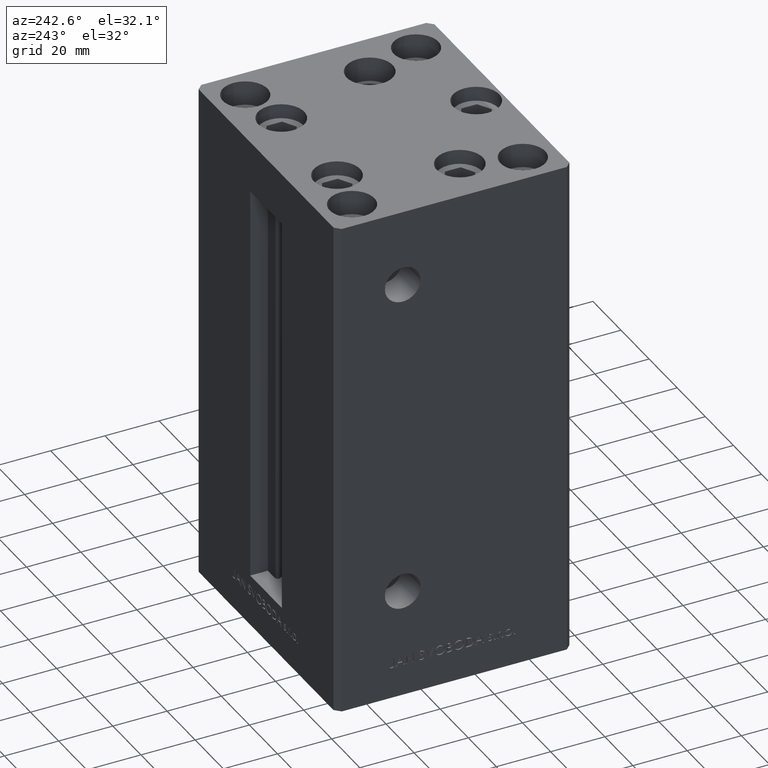
[diagram: clean part render]
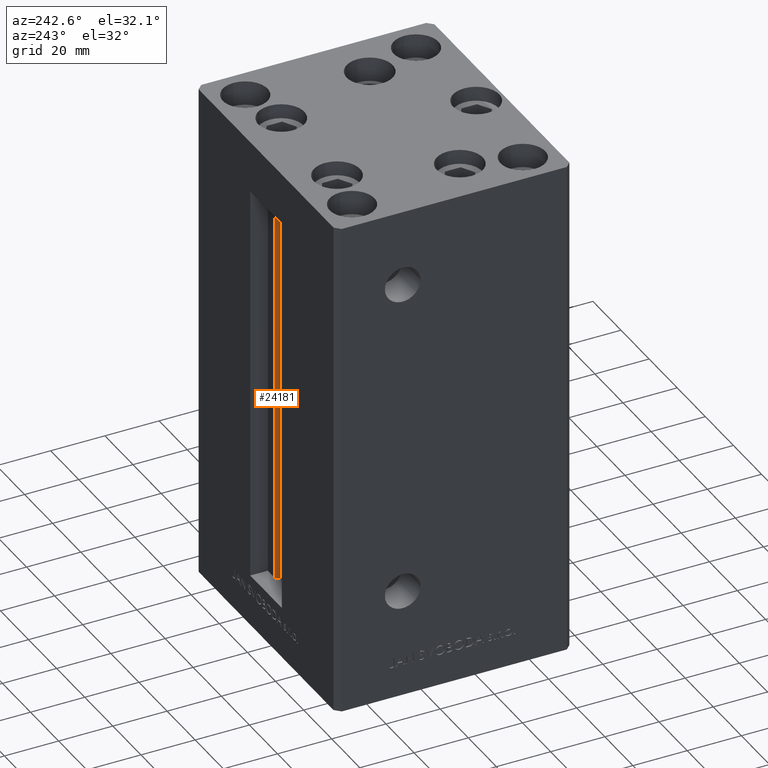
[diagram: same view with one face highlighted and labeled with its STEP entity id]
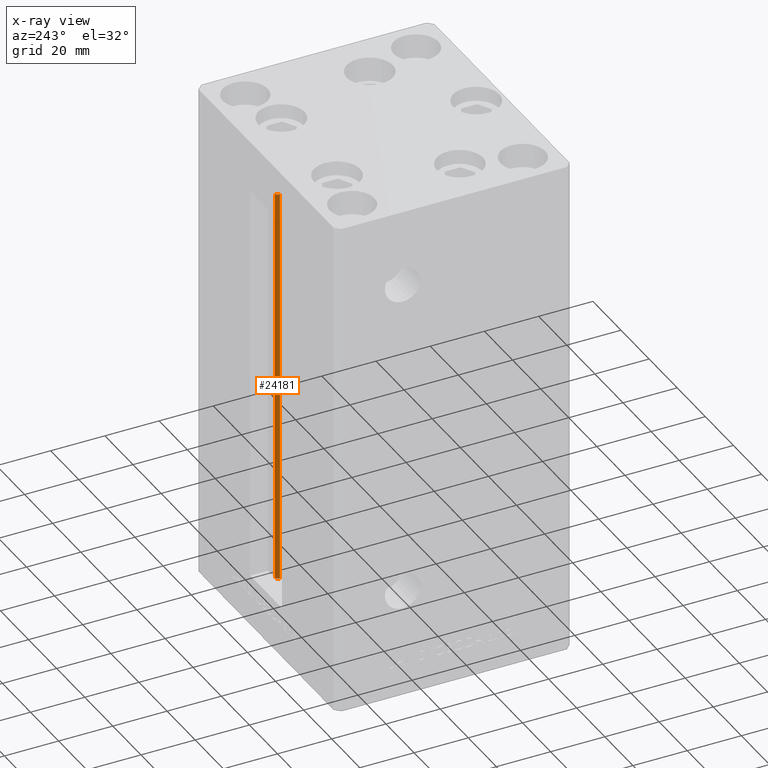
[diagram: x-ray of the same camera — body ghosted, the highlighted face saturated]
A machine part, auxiliary view. The second image highlights one B-rep face of the part: STEP entity #24181.
The next image is the same camera in x-ray: the body ghosted, the highlighted face saturated — about 0% of this face is hidden behind the body in this view.
In plain terms, the highlighted cylindrical surface (edge-blend (fillet) strip) has radius 0.9333 mm, axis along (0, 0, 1).
Its self-contained STEP definition (entity closure, byte-faithful):
#2963 = EDGE_LOOP ( 'NONE', ( #13505, #5982, #11460, #9560 ) ) ;
#3210 = VERTEX_POINT ( 'NONE', #34575 ) ;
#3589 = AXIS2_PLACEMENT_3D ( 'NONE', #19942, #38980, #4444 ) ;
#4444 = DIRECTION ( 'NONE',  ( 1.000000000000000000, 0.000000000000000000, 0.000000000000000000 ) ) ;
#5253 = DIRECTION ( 'NONE',  ( 0.000000000000000000, 0.000000000000000000, -1.000000000000000000 ) ) ;
#5393 = VERTEX_POINT ( 'NONE', #39719 ) ;
#5982 = ORIENTED_EDGE ( 'NONE', *, *, #36786, .F. ) ;
#7255 = LINE ( 'NONE', #45336, #39250 ) ;
#8321 = CARTESIAN_POINT ( 'NONE',  ( 6.183333333333997928, 36.06666666666598786, 148.5000000000000000 ) ) ;
#9560 = ORIENTED_EDGE ( 'NONE', *, *, #31005, .T. ) ;
#10240 = CARTESIAN_POINT ( 'NONE',  ( 5.375042956467945388, 35.59999999999898534, 0.000000000000000000 ) ) ;
#11460 = ORIENTED_EDGE ( 'NONE', *, *, #20365, .T. ) ;
#11804 = LINE ( 'NONE', #39207, #31268 ) ;
#12855 = CARTESIAN_POINT ( 'NONE',  ( 5.375042956467942723, 35.59999999999898534, 148.5000000000000000 ) ) ;
#13505 = ORIENTED_EDGE ( 'NONE', *, *, #23628, .F. ) ;
#15219 = CARTESIAN_POINT ( 'NONE',  ( 6.183333333333997928, 36.06666666666598786, 0.000000000000000000 ) ) ;
#15718 = DIRECTION ( 'NONE',  ( -0.000000000000000000, -0.000000000000000000, 1.000000000000000000 ) ) ;
#19144 = AXIS2_PLACEMENT_3D ( 'NONE', #15219, #15718, #50252 ) ;
#19174 = DIRECTION ( 'NONE',  ( -0.000000000000000000, -0.000000000000000000, 1.000000000000000000 ) ) ;
#19942 = CARTESIAN_POINT ( 'NONE',  ( 6.183333333333997928, 36.06666666666598786, 0.000000000000000000 ) ) ;
#20365 = EDGE_CURVE ( 'NONE', #45264, #43682, #7255, .T. ) ;
#23302 = CIRCLE ( 'NONE', #46816, 0.9333333333340008142 ) ;
#23589 = CYLINDRICAL_SURFACE ( 'NONE', #19144, 0.9333333333340008142 ) ;
#23628 = EDGE_CURVE ( 'NONE', #5393, #3210, #11804, .T. ) ;
#24181 = ADVANCED_FACE ( 'NONE', ( #34760 ), #23589, .T. ) ;
#25449 = CIRCLE ( 'NONE', #3589, 0.9333333333340008142 ) ;
#28587 = DIRECTION ( 'NONE',  ( 1.000000000000000000, 0.000000000000000000, 0.000000000000000000 ) ) ;
#30602 = DIRECTION ( 'NONE',  ( -0.000000000000000000, -0.000000000000000000, 1.000000000000000000 ) ) ;
#31005 = EDGE_CURVE ( 'NONE', #43682, #3210, #23302, .T. ) ;
#31268 = VECTOR ( 'NONE', #19174, 1000.000000000000000 ) ;
#34575 = CARTESIAN_POINT ( 'NONE',  ( 6.183333333333997928, 36.99999999999999289, 148.5000000000000000 ) ) ;
#34760 = FACE_OUTER_BOUND ( 'NONE', #2963, .T. ) ;
#36786 = EDGE_CURVE ( 'NONE', #45264, #5393, #25449, .T. ) ;
#38980 = DIRECTION ( 'NONE',  ( -0.000000000000000000, -0.000000000000000000, -1.000000000000000000 ) ) ;
#39207 = CARTESIAN_POINT ( 'NONE',  ( 6.183333333333997928, 36.99999999999999289, 0.000000000000000000 ) ) ;
#39250 = VECTOR ( 'NONE', #30602, 1000.000000000000000 ) ;
#39719 = CARTESIAN_POINT ( 'NONE',  ( 6.183333333333997928, 36.99999999999999289, 0.000000000000000000 ) ) ;
#43682 = VERTEX_POINT ( 'NONE', #12855 ) ;
#45264 = VERTEX_POINT ( 'NONE', #10240 ) ;
#45336 = CARTESIAN_POINT ( 'NONE',  ( 5.375042956467945388, 35.59999999999898534, 0.000000000000000000 ) ) ;
#46816 = AXIS2_PLACEMENT_3D ( 'NONE', #8321, #5253, #28587 ) ;
#50252 = DIRECTION ( 'NONE',  ( 1.000000000000000000, 0.000000000000000000, 0.000000000000000000 ) ) ;